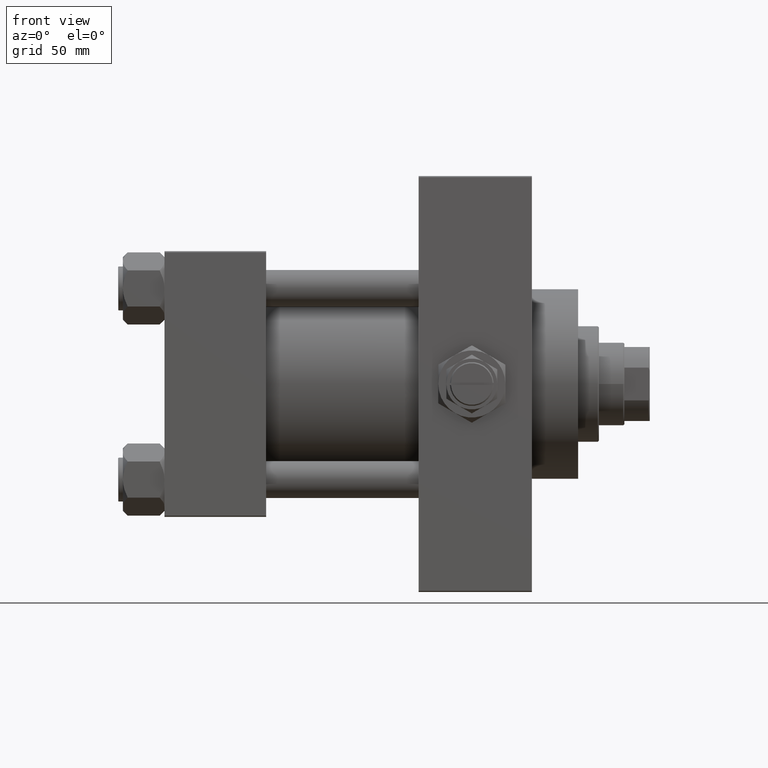
[diagram: clean part render]
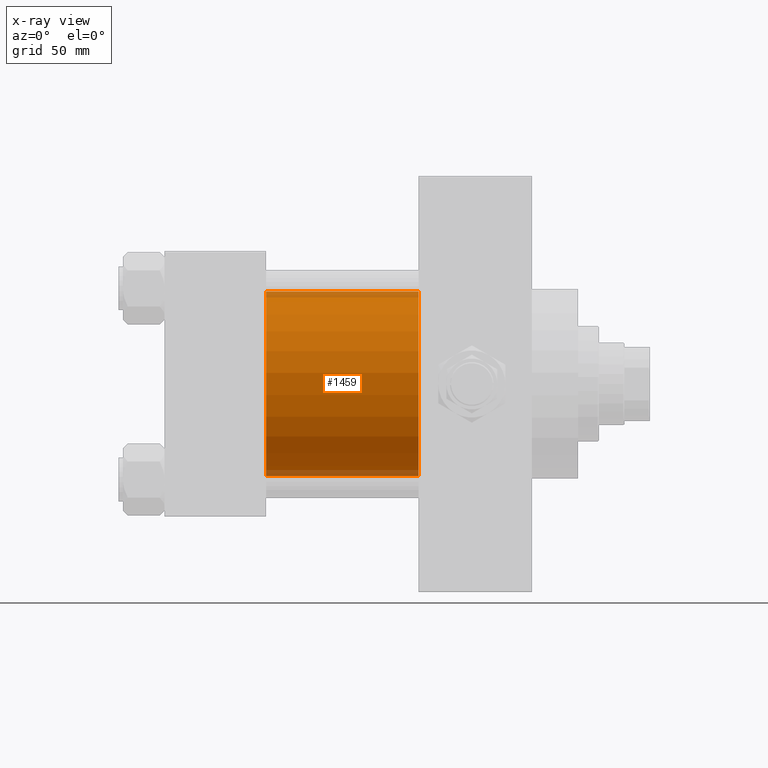
[diagram: x-ray — body ghosted, one internal face saturated and labeled with its STEP entity id]
A machine part, front view, then the same camera in x-ray: the body is ghosted and one INTERNAL B-rep face — a face not visible from any outside direction — is saturated and labeled: STEP entity #1459.
In plain terms, the highlighted cylindrical surface (partial cylindrical patch) has radius 40 mm, axis along (-1, -0, -0).
Its self-contained STEP definition (entity closure, byte-faithful):
#531 = DIRECTION ( 'NONE',  ( 1.000000000000000000, 0.000000000000000000, 0.000000000000000000 ) ) ;
#1270 = DIRECTION ( 'NONE',  ( 0.000000000000000000, 0.000000000000000000, -1.000000000000000000 ) ) ;
#1459 = ADVANCED_FACE ( 'NONE', ( #24088 ), #46840, .F. ) ;
#3018 = EDGE_LOOP ( 'NONE', ( #36910, #15556, #40471, #8917 ) ) ;
#3457 = VERTEX_POINT ( 'NONE', #7749 ) ;
#3642 = AXIS2_PLACEMENT_3D ( 'NONE', #32773, #39346, #42600 ) ;
#7749 = CARTESIAN_POINT ( 'NONE',  ( 110.0000000000000000, -2.602085213965210642E-15, 40.00000000000000000 ) ) ;
#8917 = ORIENTED_EDGE ( 'NONE', *, *, #11301, .F. ) ;
#9027 = EDGE_CURVE ( 'NONE', #3457, #19001, #13492, .T. ) ;
#10346 = DIRECTION ( 'NONE',  ( 0.000000000000000000, 0.000000000000000000, -1.000000000000000000 ) ) ;
#10641 = DIRECTION ( 'NONE',  ( -1.000000000000000000, -0.000000000000000000, -0.000000000000000000 ) ) ;
#10998 = VERTEX_POINT ( 'NONE', #44344 ) ;
#11301 = EDGE_CURVE ( 'NONE', #3457, #46197, #47319, .T. ) ;
#13492 = CIRCLE ( 'NONE', #32678, 40.00000000000000000 ) ;
#13817 = VECTOR ( 'NONE', #10641, 1000.000000000000000 ) ;
#15556 = ORIENTED_EDGE ( 'NONE', *, *, #37787, .T. ) ;
#16718 = CIRCLE ( 'NONE', #22295, 40.00000000000000000 ) ;
#19001 = VERTEX_POINT ( 'NONE', #41009 ) ;
#21543 = CARTESIAN_POINT ( 'NONE',  ( 110.0000000000000000, -2.602085213965210642E-15, 40.00000000000000000 ) ) ;
#22295 = AXIS2_PLACEMENT_3D ( 'NONE', #30083, #25350, #10346 ) ;
#23282 = CARTESIAN_POINT ( 'NONE',  ( 110.0000000000000000, -2.602085213965210642E-15, 0.000000000000000000 ) ) ;
#24088 = FACE_OUTER_BOUND ( 'NONE', #3018, .T. ) ;
#25350 = DIRECTION ( 'NONE',  ( 1.000000000000000000, 0.000000000000000000, 0.000000000000000000 ) ) ;
#30083 = CARTESIAN_POINT ( 'NONE',  ( 44.00000000000000000, -2.602085213965210642E-15, 0.000000000000000000 ) ) ;
#32678 = AXIS2_PLACEMENT_3D ( 'NONE', #23282, #531, #1270 ) ;
#32773 = CARTESIAN_POINT ( 'NONE',  ( 110.0000000000000000, -2.602085213965210642E-15, 0.000000000000000000 ) ) ;
#35675 = LINE ( 'NONE', #40669, #13817 ) ;
#36910 = ORIENTED_EDGE ( 'NONE', *, *, #9027, .T. ) ;
#37787 = EDGE_CURVE ( 'NONE', #19001, #10998, #35675, .T. ) ;
#38415 = CARTESIAN_POINT ( 'NONE',  ( 44.00000000000000000, -2.602085213965210642E-15, 40.00000000000000000 ) ) ;
#39165 = VECTOR ( 'NONE', #43796, 1000.000000000000000 ) ;
#39346 = DIRECTION ( 'NONE',  ( -1.000000000000000000, -0.000000000000000000, -0.000000000000000000 ) ) ;
#40471 = ORIENTED_EDGE ( 'NONE', *, *, #44216, .F. ) ;
#40669 = CARTESIAN_POINT ( 'NONE',  ( 110.0000000000000000, 2.296501982624201990E-15, -40.00000000000000000 ) ) ;
#41009 = CARTESIAN_POINT ( 'NONE',  ( 110.0000000000000000, 2.296501982624201990E-15, -40.00000000000000000 ) ) ;
#42600 = DIRECTION ( 'NONE',  ( 0.000000000000000000, 0.000000000000000000, 1.000000000000000000 ) ) ;
#43796 = DIRECTION ( 'NONE',  ( -1.000000000000000000, -0.000000000000000000, -0.000000000000000000 ) ) ;
#44216 = EDGE_CURVE ( 'NONE', #46197, #10998, #16718, .T. ) ;
#44344 = CARTESIAN_POINT ( 'NONE',  ( 44.00000000000000000, 2.296501982624201990E-15, -40.00000000000000000 ) ) ;
#46197 = VERTEX_POINT ( 'NONE', #38415 ) ;
#46840 = CYLINDRICAL_SURFACE ( 'NONE', #3642, 40.00000000000000000 ) ;
#47319 = LINE ( 'NONE', #21543, #39165 ) ;